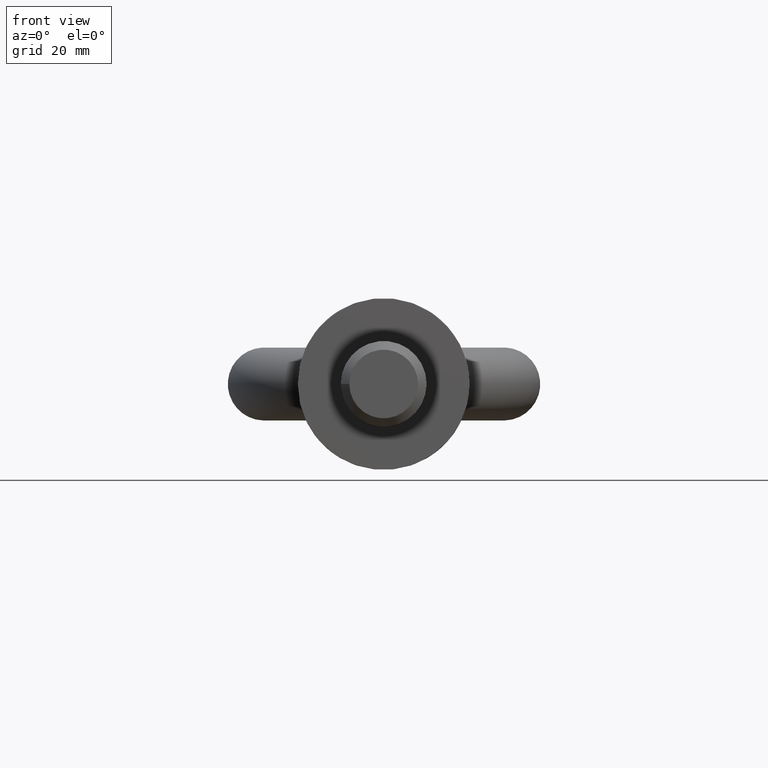
[diagram: clean part render]
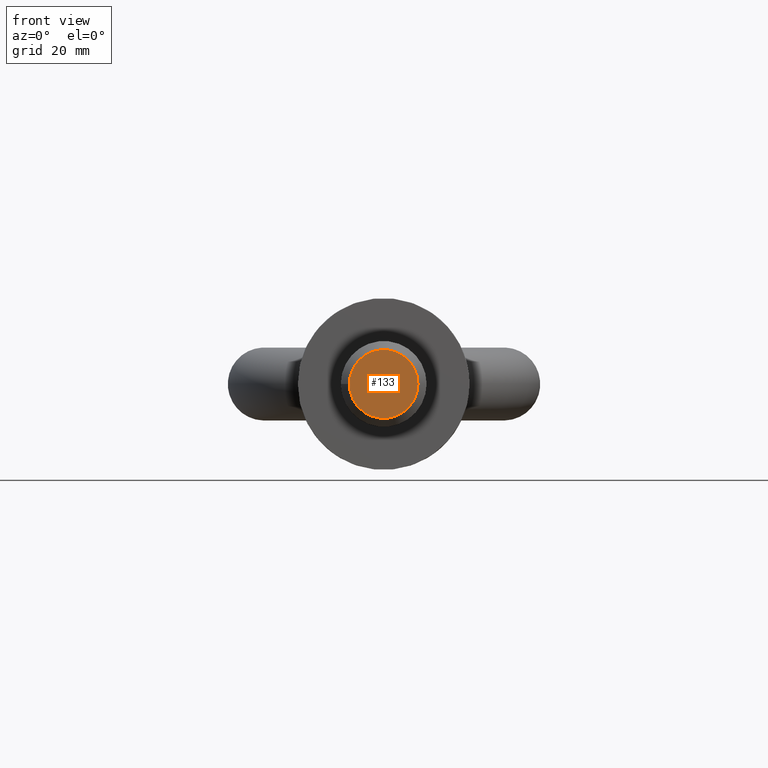
[diagram: same view with one face highlighted and labeled with its STEP entity id]
A machine part, front view. The second image highlights one B-rep face of the part: STEP entity #133.
In plain terms, the highlighted planar face has unit normal (-0, 1, 0).
Its self-contained STEP definition (entity closure, byte-faithful):
#133=ADVANCED_FACE('',(#175),#163,.F.);
#163=PLANE('',#592);
#175=FACE_OUTER_BOUND('',#207,.T.);
#207=EDGE_LOOP('',(#314));
#314=ORIENTED_EDGE('',*,*,#498,.T.);
#446=VERTEX_POINT('',#1014);
#498=EDGE_CURVE('',#446,#446,#543,.T.);
#543=CIRCLE('',#591,8.);
#591=AXIS2_PLACEMENT_3D('',#1013,#670,#671);
#592=AXIS2_PLACEMENT_3D('',#1015,#672,#673);
#670=DIRECTION('',(3.24990602193221E-18,-1.,0.));
#671=DIRECTION('',(-1.,0.,0.));
#672=DIRECTION('',(-3.24990602193221E-18,1.,0.));
#673=DIRECTION('',(-1.,0.,0.));
#1013=CARTESIAN_POINT('',(2.74617058853272E-16,-59.,0.));
#1014=CARTESIAN_POINT('',(-8.,-59.,0.));
#1015=CARTESIAN_POINT('',(5.28094457569562E-35,-59.,0.));